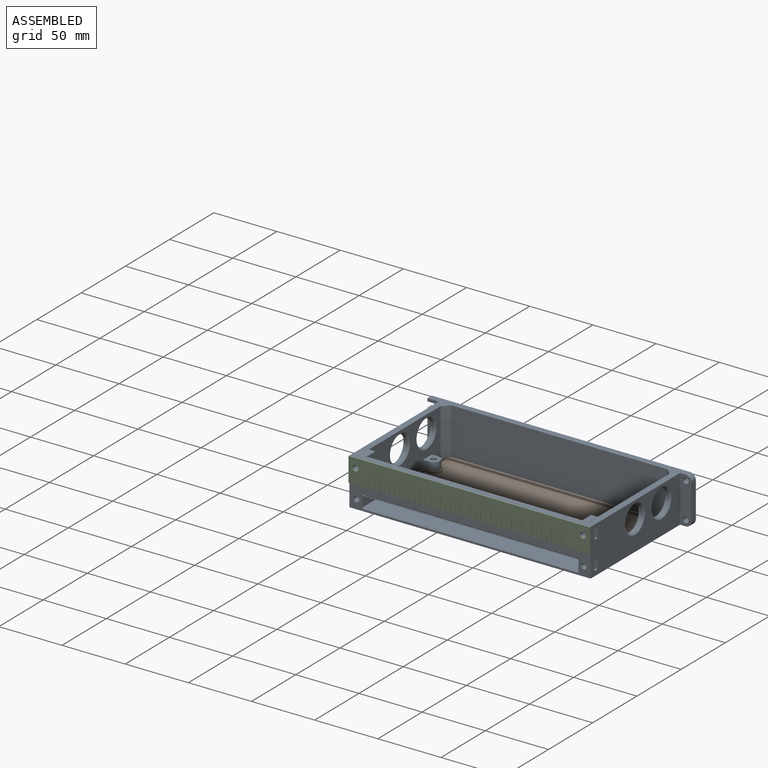
[diagram: assembled view]
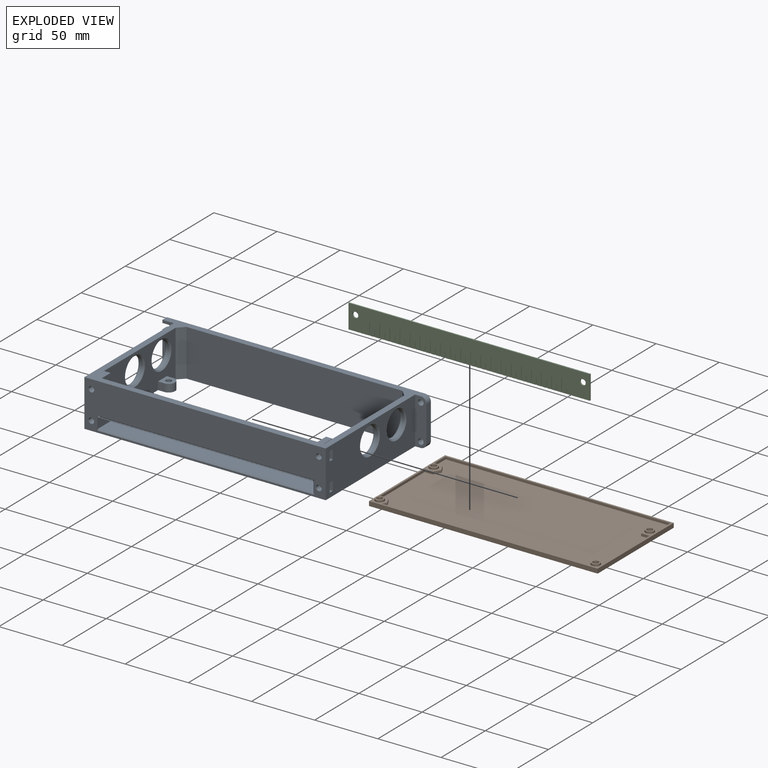
[diagram: exploded view]
GUIDED TOUR — MATED ASSEMBLY (Onshape document 58dd2976547ddf0fce9ed556, AutoMate assembly 58dd2976547ddf0fce9ed556_5da29fa2e3d1ead5ad69af2f_1a9e51e472fac4d016ce7502_default)

This assembly has 3 components, labeled P0..P2 below (a component is one placed occurrence of a part; the same part can appear more than once), held together by 1 mate. A mate is a constraint between two components; its type names the relative motion it leaves free:
  CYLINDRICAL — leaves both rotation about and translation along the listed axis free.
Axis/direction vectors are unit vectors and 'through' points are millimeter coordinates, both in the assembly's world frame.

MATES
  1. CYLINDRICAL "Cylindrical 1": P1 <-> P0, axis (0.000, 0.000, 1.000) through (85.50, -33.00, 0.00) mm

ASSEMBLY ORDER
  1. P1 — the base component [order verified]
  2. P0 [order verified]
  3. P2 [order verified]
Order-tag legend:
  [order verified] — this step's position reverses a verified removal order: the component was checked to insert without passing through the ones already placed.

Of the 3 components, 1 carries the full construction recipe — the FeatureScript program that regenerates the part's solid from scratch; the rest are supplied as boundary geometry only.
Each toured component is shown spotlighted twice — in the assembled view, then in the exploded view, where a leader line traces a displaced component back to its assembled socket (saturated green if recipe-attached, orange if geometry-only; every other component desaturated gray) — followed by its recipe or geometry summary and the mates that hold it.
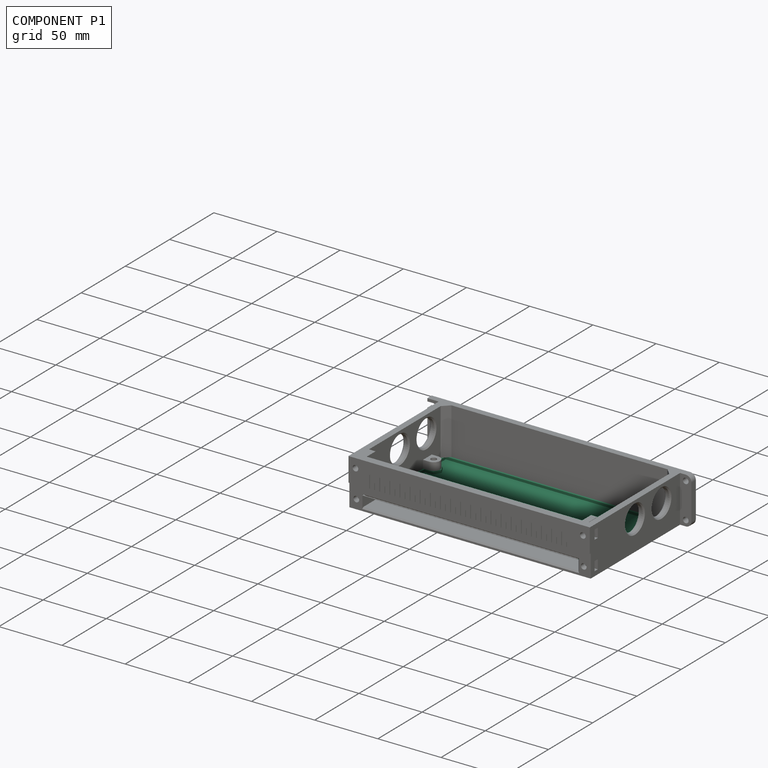
[diagram: component P1 — assembled]
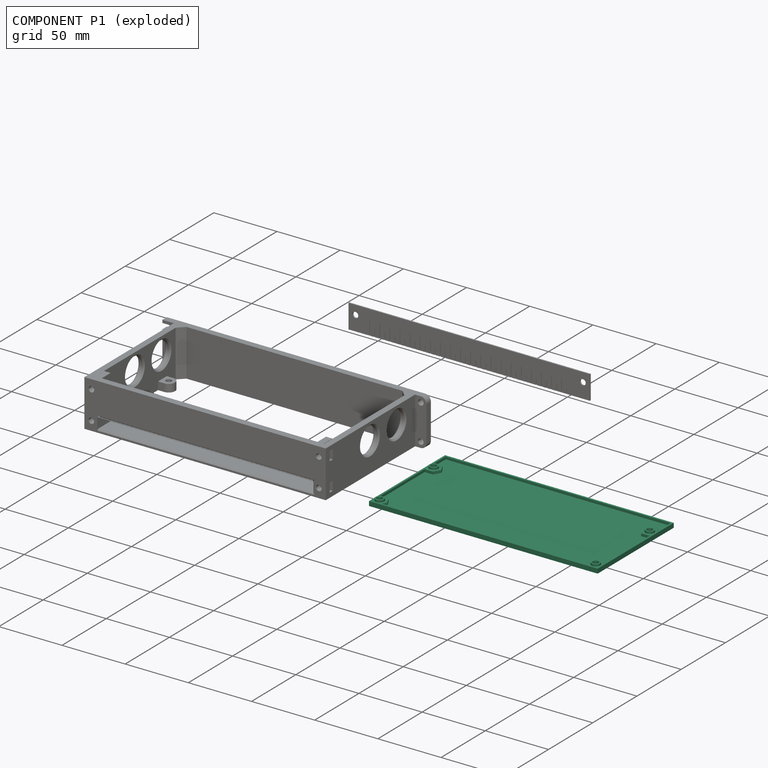
[diagram: component P1 — exploded]
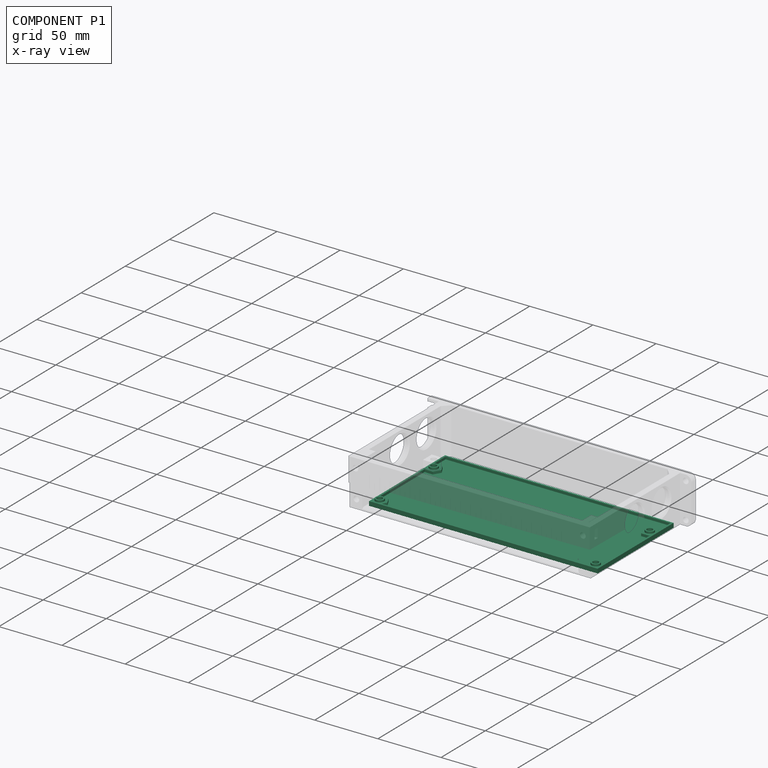
[diagram: component P1 — x-ray view]
COMPONENT P1 — recipe-attached (CADFS 00664166, mesh-verified: the recipe's output STEP matches this component's geometry to below the mesh-comparison resolution (tessellation chordal tolerance ~0.301 mm)).
Held by: CYLINDRICAL mate "Cylindrical 1" to P0.
Construction recipe (FeatureScript — the CAD program that rebuilds this solid; sketch coordinates are in the units given by the * unit suffixes, e.g. mm):

FeatureScript 1511;
import(path : "onshape/std/geometry.fs", version : "1511.0");
import(path : "onshape/std/common.fs", version : "1511.0");
const mm = millimeter;
const VERTEX = EntityType.VERTEX;
const EDGE = EntityType.EDGE;
const FACE = EntityType.FACE;
const BODY = EntityType.BODY;
function v(x, y){return vector(x, y);}
function OD(order){return orderDisambiguation(order);}
function OSD(set){return originalSetDisambiguation(set);}
function TD(topology){return topologyDisambiguation(topology);}
function TDD(query){return trueDependencyDisambiguation(query);}
function sQuery(a, b, c) {return sketchEntityQuery(a, b, c);}

annotation { "Feature Type Name" : "Feature", "Feature Type Description" : "" }
export const myFeature = defineFeature(function(context is Context, id is Id, definition is map)
    precondition{}
    {
        {
            var Q0;
            Q0=qCreatedBy(makeId("Top.planeOp"),FACE);
            var sketch = newSketch(context, id + "F0", { "sketchPlane" : qUnion([Q0])});
            skLineSegment(sketch, "E0.bottom", {"start": v(90.5, -43) * mm, "end": v(-90.5, -43) * mm});
            skLineSegment(sketch, "E0.top", {"start": v(90.5, 43) * mm, "end": v(-90.5, 43) * mm});
            skLineSegment(sketch, "E0.left", {"start": v(90.5, -43) * mm, "end": v(90.5, 43) * mm});
            skLineSegment(sketch, "E0.right", {"start": v(-90.5, -43) * mm, "end": v(-90.5, 43) * mm});
            skPoint(sketch, "E0.middle", {"position": v(0, 0) * mm});
            skSolve(sketch);
        }
        {
            var Q0;
            Q0=makeQuery(id+"F0.imprint","IMPRINT",FACE,{"disambiguationData":[TD([[makeQuery(id+"F0.imprint","IMPRINT",EDGE,{"derivedFrom":sQuery(id+"F0.wireOp",EDGE,"E0.bottom")}),-1.0]])]});
            extrude(context, id + "F1", {"entities" : qUnion([Q0]), "depth" : 3.5 * mm, "offsetDistance" : 25 * mm});
        }
        {
            var Q0;
            Q0=makeQuery(id+"F1.opExtrude","CAP_FACE",FACE,{"disambiguationData":[OSD([sQuery(id+"F0.wireOp",EDGE,"E0.bottom"),sQuery(id+"F0.wireOp",EDGE,"E0.top"),sQuery(id+"F0.wireOp",EDGE,"E0.left"),sQuery(id+"F0.wireOp",EDGE,"E0.right")])],"isStart":false});
            var sketch = newSketch(context, id + "F2", { "sketchPlane" : qUnion([Q0])});
            skCircle(sketch, "E1.cCircle", {"center": v(-85.5, 38) * mm, "radius": 3.9 * mm, "construction": true});
            skLineSegment(sketch, "E1.0", {"start": v(-83.25, 34.1) * mm, "end": v(-87.75, 34.1) * mm});
            skLineSegment(sketch, "E1.1", {"start": v(-87.75, 34.1) * mm, "end": v(-90, 38) * mm});
            skLineSegment(sketch, "E1.2", {"start": v(-90, 38) * mm, "end": v(-87.75, 41.9) * mm});
            skLineSegment(sketch, "E1.3", {"start": v(-87.75, 41.9) * mm, "end": v(-83.25, 41.9) * mm});
            skLineSegment(sketch, "E1.4", {"start": v(-83.25, 41.9) * mm, "end": v(-81, 38) * mm});
            skLineSegment(sketch, "E1.5", {"start": v(-81, 38) * mm, "end": v(-83.25, 34.1) * mm});
            skPoint(sketch, "E1.0.midPoint", {"position": v(-85.5, 34.1) * mm});
            skCircle(sketch, "E2", {"center": v(-85.5, 38) * mm, "radius": 2.25 * mm});
            skCircle(sketch, "E3", {"center": v(-85.5, 38) * mm, "radius": 3.4 * mm});
            skPoint(sketch, "E4.MirrorP", {"position": v(-85.5, -34.1) * mm});
            skLineSegment(sketch, "E5.0.1.0", {"start": v(-87.75, -19.2) * mm, "end": v(-83.25, -19.2) * mm});
            skCircle(sketch, "E5.0.1.1", {"center": v(-85.5, -23.1) * mm, "radius": 3.9 * mm, "construction": true});
            skCircle(sketch, "E5.0.1.2", {"center": v(-85.5, -23.1) * mm, "radius": 2.25 * mm});
            skCircle(sketch, "E5.0.1.3", {"center": v(-85.5, -23.1) * mm, "radius": 3.4 * mm});
            skLineSegment(sketch, "E5.0.1.4", {"start": v(-83.25, -19.2) * mm, "end": v(-81, -23.1) * mm});
            skLineSegment(sketch, "E5.0.1.5", {"start": v(-87.75, -27) * mm, "end": v(-90, -23.1) * mm});
            skLineSegment(sketch, "E5.0.1.6", {"start": v(-90, -23.1) * mm, "end": v(-87.75, -19.2) * mm});
            skLineSegment(sketch, "E5.0.1.7", {"start": v(-81, -23.1) * mm, "end": v(-83.25, -27) * mm});
            skPoint(sketch, "E5.0.1.8", {"position": v(-85.5, -27) * mm});
            skLineSegment(sketch, "E5.0.1.9", {"start": v(-83.25, -27) * mm, "end": v(-87.75, -27) * mm});
            skLineSegment(sketch, "E5.1.0.0", {"start": v(83.25, 41.9) * mm, "end": v(87.75, 41.9) * mm});
            skCircle(sketch, "E5.1.0.1", {"center": v(85.5, 38) * mm, "radius": 3.9 * mm, "construction": true});
            skCircle(sketch, "E5.1.0.2", {"center": v(85.5, 38) * mm, "radius": 2.25 * mm});
            skCircle(sketch, "E5.1.0.3", {"center": v(85.5, 38) * mm, "radius": 3.4 * mm});
            skLineSegment(sketch, "E5.1.0.4", {"start": v(87.75, 41.9) * mm, "end": v(90, 38) * mm});
            skLineSegment(sketch, "E5.1.0.5", {"start": v(83.25, 34.1) * mm, "end": v(81, 38) * mm});
            skLineSegment(sketch, "E5.1.0.6", {"start": v(81, 38) * mm, "end": v(83.25, 41.9) * mm});
            skLineSegment(sketch, "E5.1.0.7", {"start": v(90, 38) * mm, "end": v(87.75, 34.1) * mm});
            skPoint(sketch, "E5.1.0.8", {"position": v(85.5, 34.1) * mm});
            skLineSegment(sketch, "E5.1.0.9", {"start": v(87.75, 34.1) * mm, "end": v(83.25, 34.1) * mm});
            skLineSegment(sketch, "E5.1.1.0", {"start": v(83.25, -19.2) * mm, "end": v(87.75, -19.2) * mm});
            skCircle(sketch, "E5.1.1.1", {"center": v(85.5, -23.1) * mm, "radius": 3.9 * mm, "construction": true});
            skCircle(sketch, "E5.1.1.2", {"center": v(85.5, -23.1) * mm, "radius": 2.25 * mm});
            skCircle(sketch, "E5.1.1.3", {"center": v(85.5, -23.1) * mm, "radius": 3.4 * mm});
            skLineSegment(sketch, "E5.1.1.4", {"start": v(87.75, -19.2) * mm, "end": v(90, -23.1) * mm});
            skLineSegment(sketch, "E5.1.1.5", {"start": v(83.25, -27) * mm, "end": v(81, -23.1) * mm});
            skLineSegment(sketch, "E5.1.1.6", {"start": v(81, -23.1) * mm, "end": v(83.25, -19.2) * mm});
            skLineSegment(sketch, "E5.1.1.7", {"start": v(90, -23.1) * mm, "end": v(87.75, -27) * mm});
            skPoint(sketch, "E5.1.1.8", {"position": v(85.5, -27) * mm});
            skLineSegment(sketch, "E5.1.1.9", {"start": v(87.75, -27) * mm, "end": v(83.25, -27) * mm});
            skLineSegment(sketch, "E5.direction1", {"start": v(-87.75, 34.1) * mm, "end": v(83.25, 34.1) * mm, "construction": true});
            skLineSegment(sketch, "E5.direction2", {"start": v(-87.75, 34.1) * mm, "end": v(-87.75, -27) * mm, "construction": true});
            skSolve(sketch);
        }
        {
            var Q0;
            Q0=makeQuery(id+"F2.imprint","IMPRINT",FACE,{"disambiguationData":[TD([[makeQuery(id+"F2.imprint","IMPRINT",EDGE,{"derivedFrom":sQuery(id+"F2.wireOp",EDGE,"E2")}),-1.0]])]});
            var Q1;
            Q1=makeQuery(id+"F2.imprint","IMPRINT",FACE,{"disambiguationData":[TD([[makeQuery(id+"F2.imprint","IMPRINT",EDGE,{"derivedFrom":sQuery(id+"F2.wireOp",EDGE,"ab320155-eade-4191-b358-ac114a3cc9e52.MirrorC")}),1.0]])]});
            var Q2;
            Q2=makeQuery(id+"F2.imprint","IMPRINT",FACE,{"disambiguationData":[TD([[makeQuery(id+"F2.imprint","IMPRINT",EDGE,{"derivedFrom":sQuery(id+"F2.wireOp",EDGE,"a1412ccb-c3d3-4a4c-8767-e4c69d382a026.MirrorC")}),-1.0]])]});
            var Q3;
            Q3=makeQuery(id+"F2.imprint","IMPRINT",FACE,{"disambiguationData":[TD([[makeQuery(id+"F2.imprint","IMPRINT",EDGE,{"derivedFrom":sQuery(id+"F2.wireOp",EDGE,"7b19ad14-5b47-47b8-adc5-f563f86e351910.MirrorC")}),-1.0]])]});
            var Q4;
            Q4=makeQuery(id+"F2.imprint","IMPRINT",FACE,{"disambiguationData":[TD([[makeQuery(id+"F2.imprint","IMPRINT",EDGE,{"derivedFrom":sQuery(id+"F2.wireOp",EDGE,"E5.0.1.2")}),-1.0]])]});
            var Q5;
            Q5=makeQuery(id+"F2.imprint","IMPRINT",FACE,{"disambiguationData":[TD([[makeQuery(id+"F2.imprint","IMPRINT",EDGE,{"derivedFrom":sQuery(id+"F2.wireOp",EDGE,"E5.1.0.2")}),-1.0]])]});
            var Q6;
            Q6=makeQuery(id+"F2.imprint","IMPRINT",FACE,{"disambiguationData":[TD([[makeQuery(id+"F2.imprint","IMPRINT",EDGE,{"derivedFrom":sQuery(id+"F2.wireOp",EDGE,"E5.1.1.2")}),-1.0]])]});
            extrude(context, id + "F3", {"entities" : qUnion([Q0, Q1, Q2, Q3, Q4, Q5, Q6]), "operationType" : NewBodyOperationType.ADD, "oppositeDirection" : true, "depth" : 5 * mm, "offsetDistance" : 25 * mm});
        }
        {
            var Q0;
            Q0=makeQuery(id+"F2.imprint","IMPRINT",FACE,{"disambiguationData":[TD([[makeQuery(id+"F2.imprint","IMPRINT",EDGE,{"derivedFrom":sQuery(id+"F2.wireOp",EDGE,"E2")}),1.0]])]});
            var Q1;
            Q1=makeQuery(id+"F2.imprint","IMPRINT",FACE,{"disambiguationData":[TD([[makeQuery(id+"F2.imprint","IMPRINT",EDGE,{"derivedFrom":sQuery(id+"F2.wireOp",EDGE,"7b19ad14-5b47-47b8-adc5-f563f86e351910.MirrorC")}),1.0]])]});
            var Q2;
            Q2=makeQuery(id+"F2.imprint","IMPRINT",FACE,{"disambiguationData":[TD([[makeQuery(id+"F2.imprint","IMPRINT",EDGE,{"derivedFrom":sQuery(id+"F2.wireOp",EDGE,"ab320155-eade-4191-b358-ac114a3cc9e52.MirrorC")}),-1.0]])]});
            var Q3;
            Q3=makeQuery(id+"F2.imprint","IMPRINT",FACE,{"disambiguationData":[TD([[makeQuery(id+"F2.imprint","IMPRINT",EDGE,{"derivedFrom":sQuery(id+"F2.wireOp",EDGE,"a1412ccb-c3d3-4a4c-8767-e4c69d382a029.MirrorC")}),-1.0]])]});
            var Q4;
            Q4=makeQuery(id+"F2.imprint","IMPRINT",FACE,{"disambiguationData":[TD([[makeQuery(id+"F2.imprint","IMPRINT",EDGE,{"derivedFrom":sQuery(id+"F2.wireOp",EDGE,"E5.0.1.2")}),1.0]])]});
            var Q5;
            Q5=makeQuery(id+"F2.imprint","IMPRINT",FACE,{"disambiguationData":[TD([[makeQuery(id+"F2.imprint","IMPRINT",EDGE,{"derivedFrom":sQuery(id+"F2.wireOp",EDGE,"E5.1.1.2")}),1.0]])]});
            var Q6;
            Q6=makeQuery(id+"F2.imprint","IMPRINT",FACE,{"disambiguationData":[TD([[makeQuery(id+"F2.imprint","IMPRINT",EDGE,{"derivedFrom":sQuery(id+"F2.wireOp",EDGE,"E5.1.0.2")}),1.0]])]});
            extrude(context, id + "F4", {"entities" : qUnion([Q0, Q1, Q2, Q3, Q4, Q5, Q6]), "operationType" : NewBodyOperationType.REMOVE, "endBound" : BoundingType.THROUGH_ALL, "oppositeDirection" : true, "depth" : 25 * mm, "offsetDistance" : 25 * mm});
        }
        {
            var Q0;
            Q0 = qSketchRegion(id + "F2", true);
            var Q1;
            Q1=makeQuery(id+"F2.imprint","IMPRINT",FACE,{"disambiguationData":[TD([[makeQuery(id+"F2.imprint","IMPRINT",EDGE,{"derivedFrom":sQuery(id+"F2.wireOp",EDGE,"E2")}),-1.0]])]});
            var Q2;
            Q2=makeQuery(id+"F2.imprint","IMPRINT",FACE,{"disambiguationData":[TD([[makeQuery(id+"F2.imprint","IMPRINT",EDGE,{"derivedFrom":sQuery(id+"F2.wireOp",EDGE,"ab320155-eade-4191-b358-ac114a3cc9e52.MirrorC")}),1.0]])]});
            var Q3;
            Q3=makeQuery(id+"F2.imprint","IMPRINT",FACE,{"disambiguationData":[TD([[makeQuery(id+"F2.imprint","IMPRINT",EDGE,{"derivedFrom":sQuery(id+"F2.wireOp",EDGE,"a1412ccb-c3d3-4a4c-8767-e4c69d382a026.MirrorC")}),-1.0]])]});
            var Q4;
            Q4=makeQuery(id+"F2.imprint","IMPRINT",FACE,{"disambiguationData":[TD([[makeQuery(id+"F2.imprint","IMPRINT",EDGE,{"derivedFrom":sQuery(id+"F2.wireOp",EDGE,"7b19ad14-5b47-47b8-adc5-f563f86e351910.MirrorC")}),-1.0]])]});
            var Q5;
            Q5=makeQuery(id+"F2.imprint","IMPRINT",FACE,{"disambiguationData":[TD([[makeQuery(id+"F2.imprint","IMPRINT",EDGE,{"derivedFrom":sQuery(id+"F2.wireOp",EDGE,"E5.1.0.2")}),-1.0]])]});
            var Q6;
            Q6=makeQuery(id+"F2.imprint","IMPRINT",FACE,{"disambiguationData":[TD([[makeQuery(id+"F2.imprint","IMPRINT",EDGE,{"derivedFrom":sQuery(id+"F2.wireOp",EDGE,"E5.1.1.2")}),-1.0]])]});
            var Q7;
            Q7=makeQuery(id+"F2.imprint","IMPRINT",FACE,{"disambiguationData":[TD([[makeQuery(id+"F2.imprint","IMPRINT",EDGE,{"derivedFrom":sQuery(id+"F2.wireOp",EDGE,"E5.0.1.2")}),-1.0]])]});
            extrude(context, id + "F5", {"entities" : qUnion([Q0, Q1, Q2, Q3, Q4, Q5, Q6, Q7]), "operationType" : NewBodyOperationType.REMOVE, "oppositeDirection" : true, "depth" : 3.2 * mm, "offsetDistance" : 25 * mm});
        }
        {
            var Q0;
            {var subQ0=sQuery(id+"F0.wireOp",EDGE,"E0.left");var subQ1=sQuery(id+"F0.wireOp",EDGE,"E0.top");var subQ2=sQuery(id+"F0.wireOp",EDGE,"E0.right");var subQ3=sQuery(id+"F0.wireOp",EDGE,"E0.bottom");Q0=makeQuery(id+"F3.boolean.opBoolean","SPLIT",FACE,{"disambiguationData":[TD([makeQuery(id+"F1.opExtrude","SWEPT_FACE",FACE,{"disambiguationData":[OSD([subQ3])]})])],"derivedFrom":makeQuery(id+"F1.opExtrude","CAP_FACE",FACE,{"disambiguationData":[OSD([subQ3,subQ1,subQ0,subQ2])],"isStart":true})});}
            shell(context, id + "F6", {"entities" : qUnion([Q0]), "thickness" : 1.5 * mm});
        }
    });
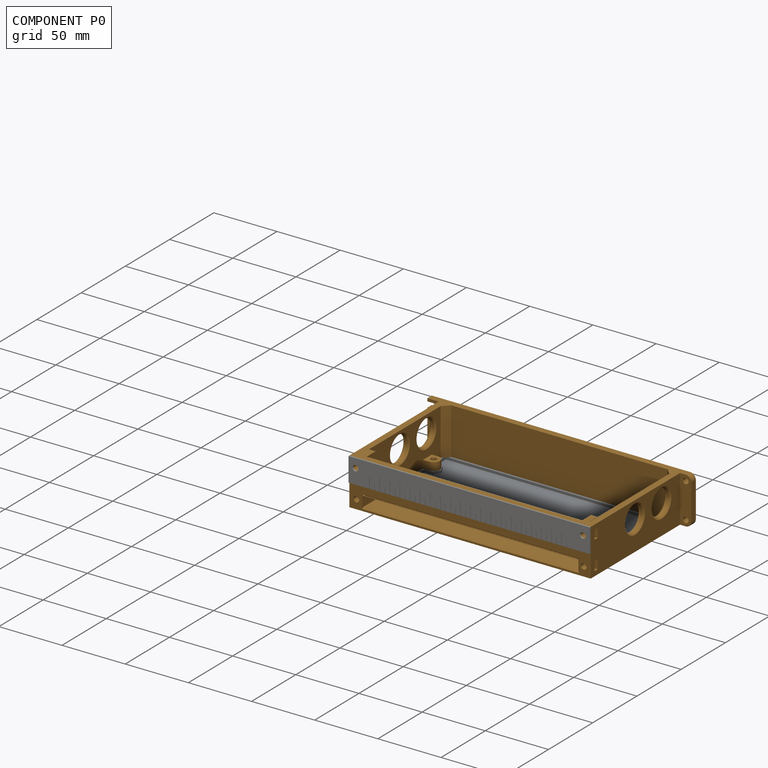
[diagram: component P0 — assembled]
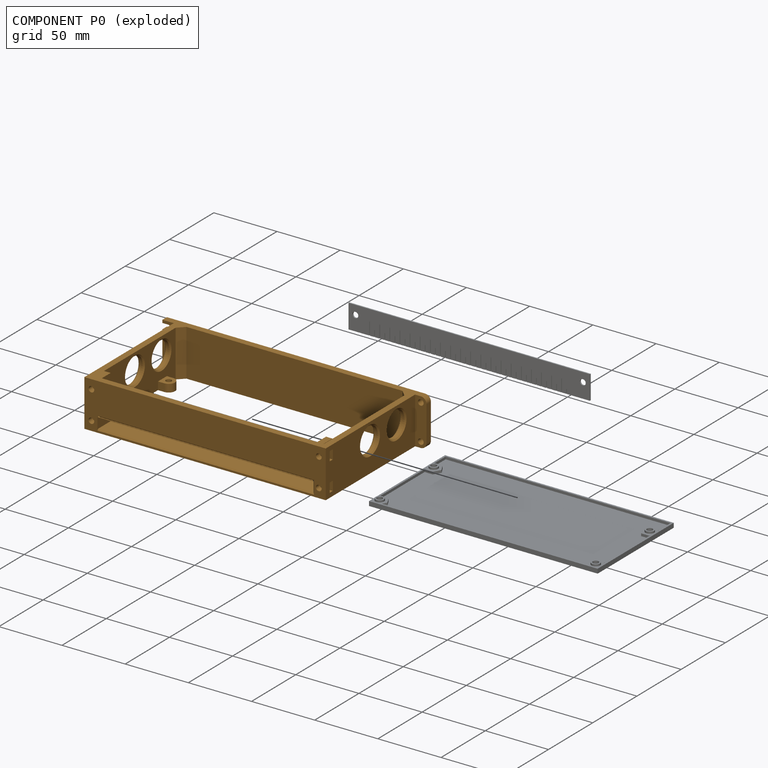
[diagram: component P0 — exploded]
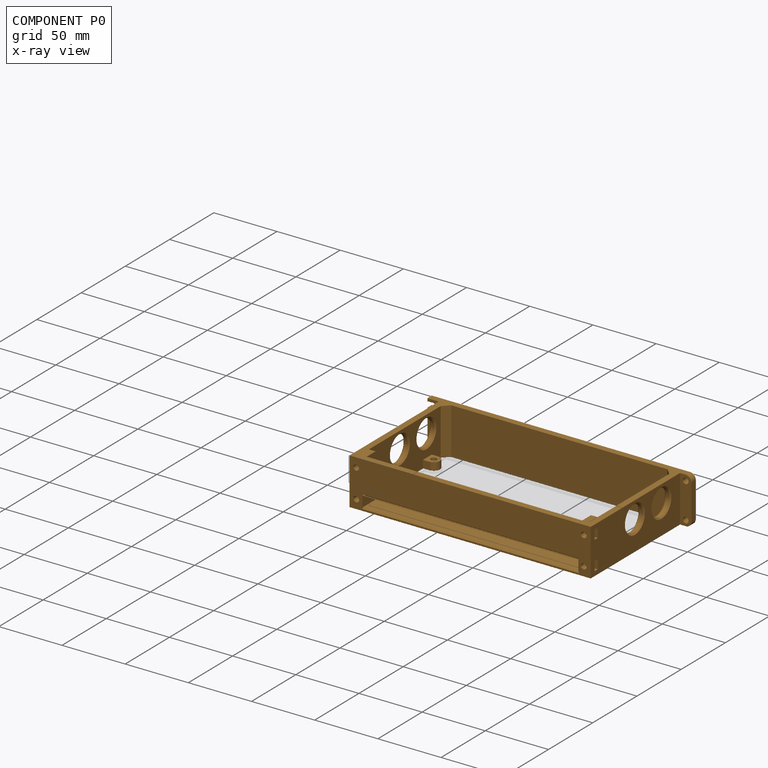
[diagram: component P0 — x-ray view]
COMPONENT P0 — geometry summary (no construction recipe available for this part):
  bounding box: 209.0 x 106.0 x 37.0 mm
  B-rep topology: 1 solid, 147 faces, 850 edges
  volume: 103886 mm^3 (13% of its bounding box)
Held by: CYLINDRICAL mate "Cylindrical 1" to P1.
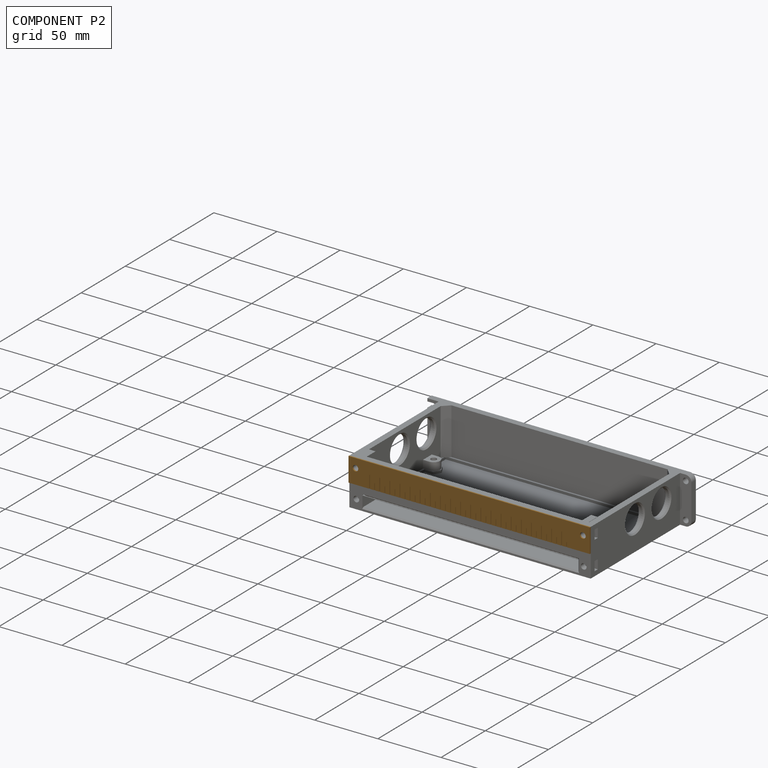
[diagram: component P2 — assembled]
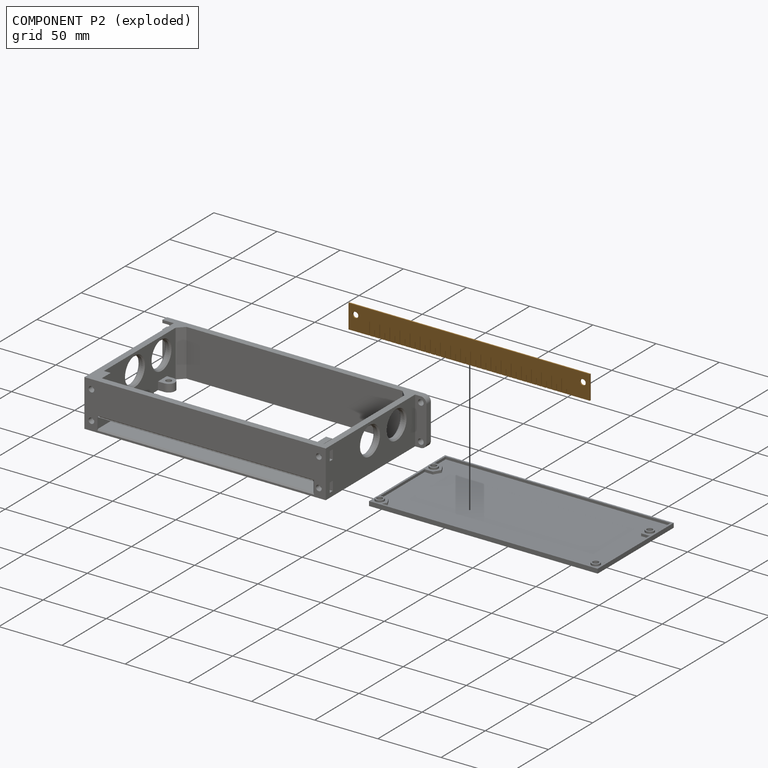
[diagram: component P2 — exploded]
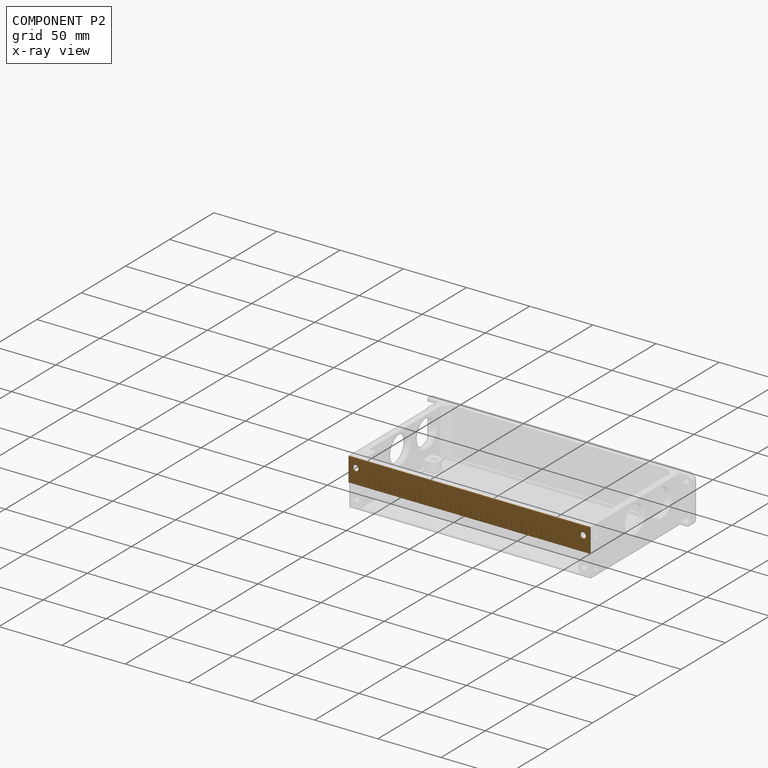
[diagram: component P2 — x-ray view]
COMPONENT P2 — geometry summary (no construction recipe available for this part):
  bounding box: 191.0 x 19.0 x 1.0 mm
  B-rep topology: 1 solid, 170 faces, 1008 edges
  volume: 3448 mm^3 (95% of its bounding box)
  symmetry: 2-fold rotationally symmetric about the x axis; 2-fold rotationally symmetric about the y axis; 2-fold rotationally symmetric about the z axis; mirror-symmetric across its x mid-plane, y mid-plane, z mid-plane
Held by: no mates (free).
PROVENANCE & LICENSES
Assembly (occurrences, transforms, mates, per-part STEP geometry): AutoMate dataset, Zenodo record 7776208, CC0.
Construction recipes: CADFS (HuggingFace VladPyatov/CADFS, CC-BY-4.0, layered over the ABC dataset), FeatureScript reconstruction programs keyed by ABC model id.
Join: ABC meta listings map ABC model id -> Onshape documentId; within a shared document, parts are matched by geometric signature (bounding-box dims + volume at 0.1% relative tolerance, exact B-rep face/solid counts).
Verification: 1 of this assembly's 3 components carries a recipe attachment, and every attachment is mesh-verified: the CADFS STEP and the AutoMate member STEP were compared as meshes in their shared local frame (symmetric sampled-point-to-mesh distance); worst across the 1 attachment: below the mesh-comparison resolution (tessellation chordal tolerance ~0.301 mm) on a 200 mm part.
Renders: orthographic iso camera (az 35 / el 25); the floor grid conveys scale (grid pitch printed in each image; no ruler). In the exploded view each component is displaced by its stored offset vector: the offsets alone carry the explosion direction (mate normal/axis signs are not orientation cues and do not encode it), and separation distances are assigned per mate-chain, not proportionally to assembly-order depth.
